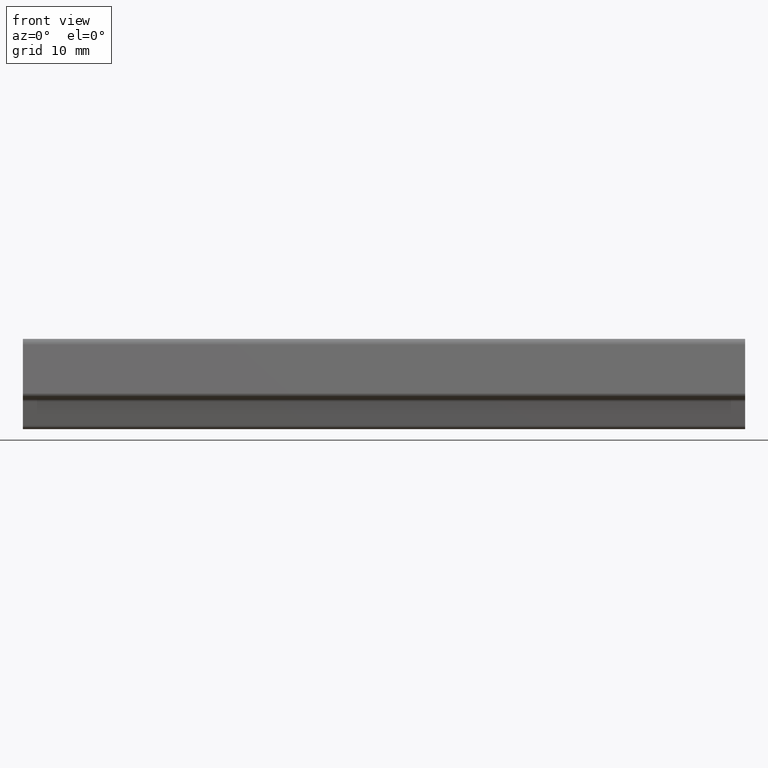
[diagram: clean part render]
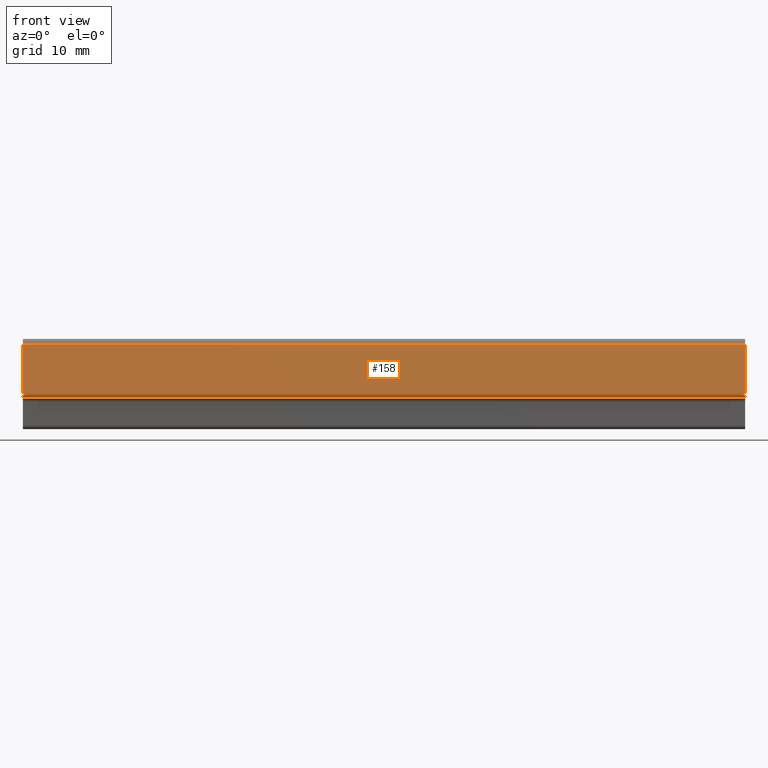
[diagram: same view with one face highlighted and labeled with its STEP entity id]
A machine part, front view. The second image highlights one B-rep face of the part: STEP entity #158.
In plain terms, the highlighted planar face has unit normal (0, 0.9699, -0.2435).
Its self-contained STEP definition (entity closure, byte-faithful):
#93=CARTESIAN_POINT('',(0.0,-3.189906397565096,11.743469030674213));
#94=VERTEX_POINT('',#93);
#102=CARTESIAN_POINT('',(100.0,-3.189906397565096,11.743469030674213));
#103=VERTEX_POINT('',#102);
#104=CARTESIAN_POINT('',(100.0,-3.189906397565096,11.743469030674213));
#105=DIRECTION('',(-1.0,0.0,0.0));
#106=VECTOR('',#105,100.0);
#107=LINE('',#104,#106);
#108=EDGE_CURVE('',#103,#94,#107,.T.);
#128=CARTESIAN_POINT('',(105.0,-3.105042201722849,12.081542908988805));
#129=DIRECTION('',(0.0,0.969908671526631,-0.243469030674224));
#130=DIRECTION('',(0.0,-0.243469030674224,-0.969908671526631));
#131=AXIS2_PLACEMENT_3D('',#128,#129,#130);
#132=PLANE('',#131);
#133=CARTESIAN_POINT('',(0.0,-4.887190314410020,4.981991464382389));
#134=VERTEX_POINT('',#133);
#135=CARTESIAN_POINT('',(0.0,-3.189906397565096,11.743469030674213));
#136=DIRECTION('',(0.0,-0.243469030674224,-0.969908671526631));
#137=VECTOR('',#136,6.971251793892404);
#138=LINE('',#135,#137);
#139=EDGE_CURVE('',#94,#134,#138,.T.);
#140=ORIENTED_EDGE('',*,*,#139,.T.);
#141=CARTESIAN_POINT('',(100.0,-4.887190314410020,4.981991464382389));
#142=VERTEX_POINT('',#141);
#143=CARTESIAN_POINT('',(100.0,-4.887190314410020,4.981991464382389));
#144=DIRECTION('',(-1.0,0.0,0.0));
#145=VECTOR('',#144,100.0);
#146=LINE('',#143,#145);
#147=EDGE_CURVE('',#142,#134,#146,.T.);
#148=ORIENTED_EDGE('',*,*,#147,.F.);
#149=CARTESIAN_POINT('',(100.0,-3.189906397565096,11.743469030674213));
#150=DIRECTION('',(0.0,-0.243469030674224,-0.969908671526631));
#151=VECTOR('',#150,6.971251793892404);
#152=LINE('',#149,#151);
#153=EDGE_CURVE('',#103,#142,#152,.T.);
#154=ORIENTED_EDGE('',*,*,#153,.F.);
#155=ORIENTED_EDGE('',*,*,#108,.T.);
#156=EDGE_LOOP('',(#140,#148,#154,#155));
#157=FACE_OUTER_BOUND('',#156,.T.);
#158=ADVANCED_FACE('',(#157),#132,.F.);